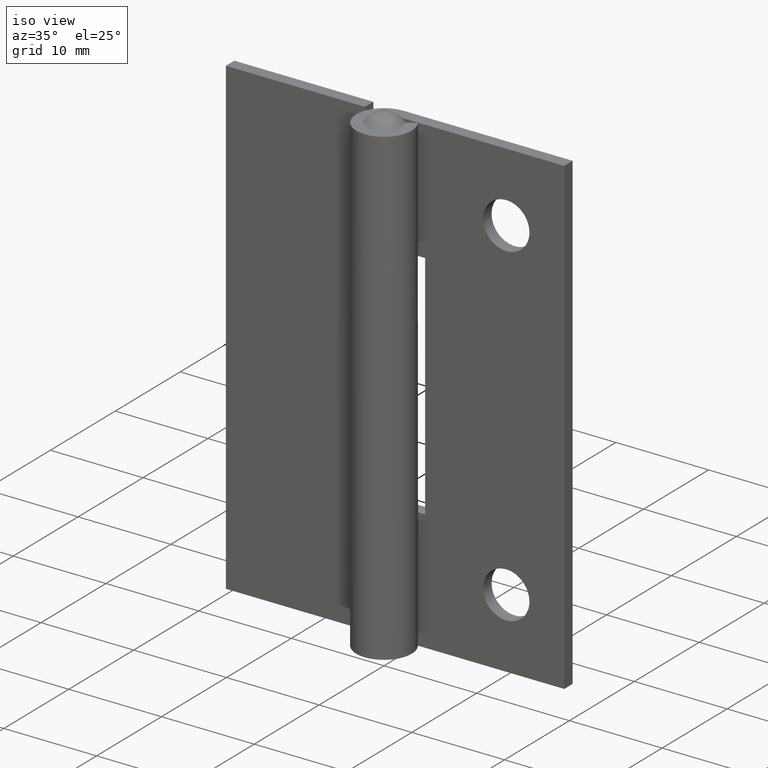
[diagram: clean part render]
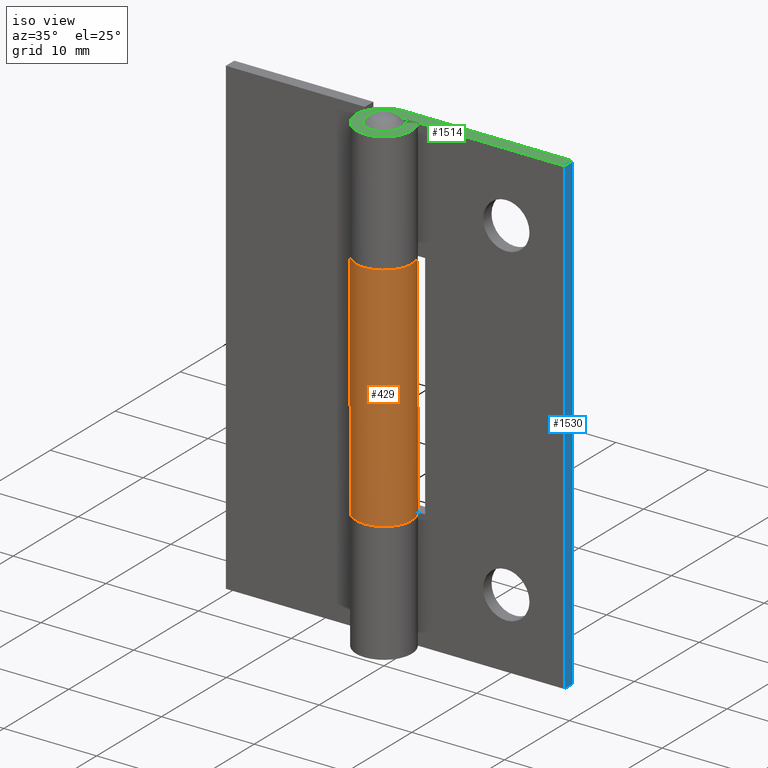
[diagram: same view with three faces highlighted in distinct colors, each labeled with its STEP entity id]
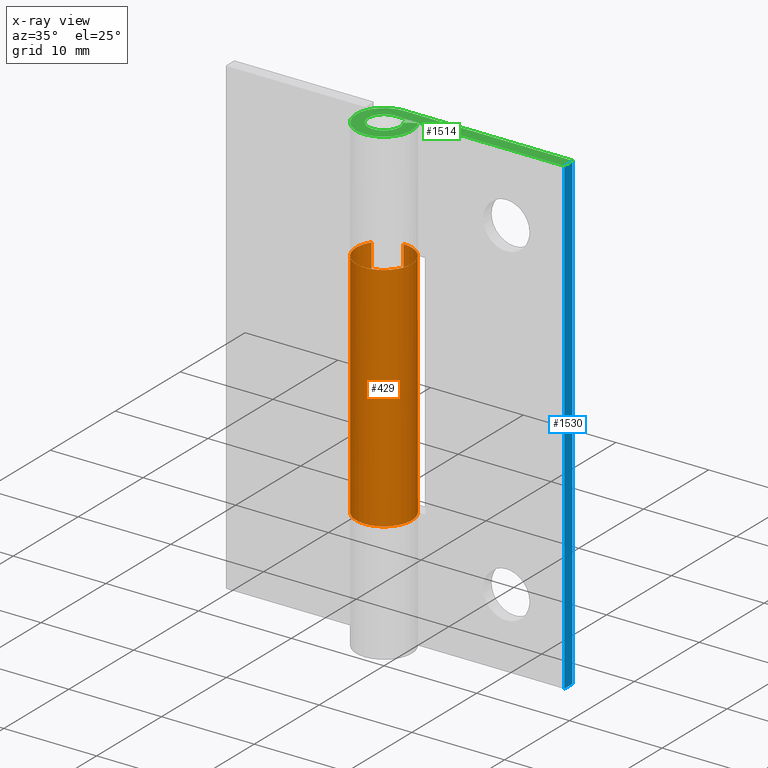
[diagram: x-ray of the same camera — body ghosted, the three highlighted faces saturated]
A machine part, iso view with three faces highlighted in distinct colors.
The next image is the same camera in x-ray (body ghosted, the three faces saturated) — at least one of them is partly hidden behind the body in this view.
Their STEP definitions:

[orange] entity #429 — the highlighted face is a freeform B-spline surface patch.
#10=CARTESIAN_POINT('',(0.0,3.000002000000000,13.0));
#11=VERTEX_POINT('',#10);
#54=CARTESIAN_POINT('',(0.0,3.000002000000000,37.999992000000049));
#55=VERTEX_POINT('',#54);
#61=CARTESIAN_POINT('',(0.0,3.000002000000000,37.999992000000049));
#62=CARTESIAN_POINT('',(0.0,3.000002000000000,13.0));
#63=QUASI_UNIFORM_CURVE('',1,(#61,#62),.UNSPECIFIED.,.F.,.U.);
#64=EDGE_CURVE('',#55,#11,#63,.T.);
#82=CARTESIAN_POINT('',(1.423026426195536,-2.641024004122863,13.0));
#83=VERTEX_POINT('',#82);
#84=CARTESIAN_POINT('',(1.423026426195536,-2.641024004122863,13.0));
#85=CARTESIAN_POINT('',(1.696241003748882,-2.493999839197553,13.000000000000020));
#86=CARTESIAN_POINT('',(2.054515973802889,-2.221699898313400,12.999999999999931));
#87=CARTESIAN_POINT('',(2.434677555923820,-1.769459809919619,13.000000000000050));
#88=CARTESIAN_POINT('',(2.693363652278597,-1.356463224982445,12.999999999999950));
#89=CARTESIAN_POINT('',(2.872407513277396,-0.912990057427671,13.000000000000041));
#90=CARTESIAN_POINT('',(2.991300741296551,-0.376854252513618,12.999999999999909));
#91=CARTESIAN_POINT('',(3.019074991646429,0.205004030988084,13.000000000000099));
#92=CARTESIAN_POINT('',(2.888675971770090,0.922281118502853,12.999999999999821));
#93=CARTESIAN_POINT('',(2.573252400313777,1.604187632160447,13.000000000000149));
#94=CARTESIAN_POINT('',(2.144066030474825,2.127707864975705,12.999999999999851));
#95=CARTESIAN_POINT('',(1.685063248863459,2.500774553818776,13.000000000000080));
#96=CARTESIAN_POINT('',(1.249172523742587,2.742722436521935,12.999999999999970));
#97=CARTESIAN_POINT('',(0.682478061986653,2.943999723250462,13.000000000000011));
#98=CARTESIAN_POINT('',(0.268883878784432,3.000091895017648,12.999999999999989));
#99=CARTESIAN_POINT('',(0.0,3.000002000000000,13.0));
#100=B_SPLINE_CURVE_WITH_KNOTS('',3,(#84,#85,#86,#87,#88,#89,#90,#91,#92,#93,#94,#95,#96,#97,#98,#99),.UNSPECIFIED.,.F.,.U.,(4,1,1,1,1,1,1,1,1,1,1,1,1,4),(0.000000144265609,0.930714000393920,1.334023337405996,1.768370657240563,2.388863582066503,2.761161634295871,3.412660143187285,4.126195433108664,4.932811566384553,5.646380692375820,6.142776790865187,6.701213533085385,7.135550101752789,7.942169907975120),.UNSPECIFIED.);
#101=EDGE_CURVE('',#83,#11,#100,.T.);
#103=CARTESIAN_POINT('',(-2.505495699458090,1.650001000000000,13.0));
#104=VERTEX_POINT('',#103);
#105=CARTESIAN_POINT('',(-2.505495699458090,1.650001000000000,13.0));
#106=CARTESIAN_POINT('',(-2.636353800408151,1.451383417659768,12.999999999999980));
#107=CARTESIAN_POINT('',(-2.808537221475131,1.106662157560074,13.000000000000041));
#108=CARTESIAN_POINT('',(-2.967381686086659,0.537399019557936,13.000000000000011));
#109=CARTESIAN_POINT('',(-3.016394507632969,0.030324298074741,12.999999999999931));
#110=CARTESIAN_POINT('',(-2.973382794595851,-0.476112232548683,13.000000000000171));
#111=CARTESIAN_POINT('',(-2.845695036130103,-1.010613010288413,12.999999999999661));
#112=CARTESIAN_POINT('',(-2.619267545849242,-1.502936878233849,13.000000000000410));
#113=CARTESIAN_POINT('',(-2.290450828599840,-1.956109718948861,12.999999999999719));
#114=CARTESIAN_POINT('',(-1.909968860638736,-2.338716665733205,13.000000000000121));
#115=CARTESIAN_POINT('',(-1.426187214994965,-2.663785632296504,13.000000000000030));
#116=CARTESIAN_POINT('',(-0.829305435958523,-2.905505589189485,12.999999999999879));
#117=CARTESIAN_POINT('',(-0.255649051529168,-3.008693424912726,13.000000000000050));
#118=CARTESIAN_POINT('',(0.346118824189656,-2.997533016453518,12.999999999999940));
#119=CARTESIAN_POINT('',(0.895819188891814,-2.883435480429643,13.000000000000050));
#120=CARTESIAN_POINT('',(1.259168291976045,-2.729331890790453,12.999999999999980));
#121=CARTESIAN_POINT('',(1.423026426195536,-2.641024004122863,13.0));
#122=B_SPLINE_CURVE_WITH_KNOTS('',3,(#105,#106,#107,#108,#109,#110,#111,#112,#113,#114,#115,#116,#117,#118,#119,#120,#121),.UNSPECIFIED.,.F.,.U.,(4,1,1,1,1,1,1,1,1,1,1,1,1,1,4),(0.000000144268528,0.713540141813481,1.147885989234410,1.768370898900415,2.233738761618954,2.668080367282656,3.412660609565409,3.847023008366085,4.343348167258297,5.025895140359309,5.584332961960519,6.266873864376220,6.763258202202440,7.383751418462983,7.942170993323504),.UNSPECIFIED.);
#123=EDGE_CURVE('',#104,#83,#122,.T.);
#248=CARTESIAN_POINT('',(-2.505495699458090,1.650001000000000,37.999992000000049));
#249=VERTEX_POINT('',#248);
#255=CARTESIAN_POINT('',(1.423025470731808,-2.641024518941942,37.999992000000042));
#256=VERTEX_POINT('',#255);
#257=CARTESIAN_POINT('',(1.423025470731808,-2.641024518941942,37.999992000000042));
#258=CARTESIAN_POINT('',(1.213659353721908,-2.753891330163818,37.999992000000027));
#259=CARTESIAN_POINT('',(0.855117370964844,-2.895053891927662,37.999991999999963));
#260=CARTESIAN_POINT('',(0.314857555621432,-2.995568228683164,37.999992000000177));
#261=CARTESIAN_POINT('',(-0.224522252304437,-3.011178803819482,37.999991999999807));
#262=CARTESIAN_POINT('',(-0.747903717078678,-2.922613854604747,37.999991999999807));
#263=CARTESIAN_POINT('',(-1.254451525264408,-2.738476170279309,37.999992000000823));
#264=CARTESIAN_POINT('',(-1.627221646336632,-2.533027781264944,37.999991999999608));
#265=CARTESIAN_POINT('',(-1.998701919278428,-2.251496052555410,37.999992000000148));
#266=CARTESIAN_POINT('',(-2.377444903791668,-1.866821810200601,37.999992000000283));
#267=CARTESIAN_POINT('',(-2.695717884032923,-1.365317685500108,37.999992000000177));
#268=CARTESIAN_POINT('',(-2.928867554783626,-0.743447851588273,37.999991999999587));
#269=CARTESIAN_POINT('',(-3.029823111526469,-0.084174181285080,37.999992000000077));
#270=CARTESIAN_POINT('',(-2.966633403595887,0.569335725162480,37.999992000000027));
#271=CARTESIAN_POINT('',(-2.786912057333352,1.154328610983712,37.999992000000042));
#272=CARTESIAN_POINT('',(-2.619273513573334,1.477289382752710,37.999992000000049));
#273=CARTESIAN_POINT('',(-2.505495699458090,1.650001000000000,37.999992000000049));
#274=B_SPLINE_CURVE_WITH_KNOTS('',3,(#257,#258,#259,#260,#261,#262,#263,#264,#265,#266,#267,#268,#269,#270,#271,#272,#273),.UNSPECIFIED.,.F.,.U.,(4,1,1,1,1,1,1,1,1,1,1,1,1,1,4),(0.000000144267989,0.713540044317472,1.147885832377158,1.644275308184150,2.326815798812142,2.730124571149556,3.257537373923235,3.598826527053475,4.126195433109304,4.870765774722469,5.367158199966370,6.111749235976080,6.856339712164311,7.321712264856264,7.942169907975118),.UNSPECIFIED.);
#275=EDGE_CURVE('',#256,#249,#274,.T.);
#277=CARTESIAN_POINT('',(0.0,3.000002000000000,37.999992000000049));
#278=CARTESIAN_POINT('',(0.237853404007871,3.000064694532663,37.999991999999963));
#279=CARTESIAN_POINT('',(0.589419381193620,2.957951708421806,37.999992000000191));
#280=CARTESIAN_POINT('',(1.094908251013483,2.804505801480021,37.999992000000141));
#281=CARTESIAN_POINT('',(1.555268961156716,2.588086777189597,37.999992000000120));
#282=CARTESIAN_POINT('',(1.990441315333389,2.266789306963455,37.999992000000027));
#283=CARTESIAN_POINT('',(2.338146017495739,1.896351055646265,37.999992000000042));
#284=CARTESIAN_POINT('',(2.622896308914709,1.488167639543203,37.999992000000049));
#285=CARTESIAN_POINT('',(2.828023883270219,1.044679391510370,37.999991999999978));
#286=CARTESIAN_POINT('',(2.970646160618597,0.514178150719598,37.999992000000020));
#287=CARTESIAN_POINT('',(3.021271923702222,-0.034505039179120,37.999992000000020));
#288=CARTESIAN_POINT('',(2.941519575711395,-0.726539621788880,37.999992000000212));
#289=CARTESIAN_POINT('',(2.703781919404844,-1.362281026683100,37.999992000000013));
#290=CARTESIAN_POINT('',(2.368258183336595,-1.862626169834174,37.999992000000063));
#291=CARTESIAN_POINT('',(1.972275541417235,-2.286996004029181,37.999992000000027));
#292=CARTESIAN_POINT('',(1.650665847580584,-2.518463914595679,37.999992000000027));
#293=CARTESIAN_POINT('',(1.423025470731808,-2.641024518941942,37.999992000000042));
#294=B_SPLINE_CURVE_WITH_KNOTS('',3,(#277,#278,#279,#280,#281,#282,#283,#284,#285,#286,#287,#288,#289,#290,#291,#292,#293),.UNSPECIFIED.,.F.,.U.,(4,1,1,1,1,1,1,1,1,1,1,1,1,1,4),(0.000000144267354,0.713540141812519,1.054801511953356,1.582230310151594,2.233738761618328,2.668080367282085,3.102412490108013,3.722894188117314,4.126195996971263,4.746686621185891,5.367158933418060,6.204826396354631,6.763258202202422,7.166590168866429,7.942170993323503),.UNSPECIFIED.);
#295=EDGE_CURVE('',#55,#256,#294,.T.);
#395=CARTESIAN_POINT('',(-2.491001505560273,1.671802470180149,38.624991800000053));
#396=CARTESIAN_POINT('',(-2.491001505560273,1.671802470180149,12.359375204999999));
#397=CARTESIAN_POINT('',(-4.567829051347469,-1.422690231931652,38.624991800000053));
#398=CARTESIAN_POINT('',(-4.567829051347469,-1.422690231931652,12.359375204999999));
#399=CARTESIAN_POINT('',(-1.101144868501883,-2.790607815257451,38.624991800000053));
#400=CARTESIAN_POINT('',(-1.101144868501883,-2.790607815257451,12.359375204999999));
#401=CARTESIAN_POINT('',(2.365539314343703,-4.158525398583251,38.624991800000053));
#402=CARTESIAN_POINT('',(2.365539314343703,-4.158525398583251,12.359375204999999));
#403=CARTESIAN_POINT('',(2.961407889556615,-0.479661663754601,38.624991800000053));
#404=CARTESIAN_POINT('',(2.961407889556615,-0.479661663754601,12.359375204999999));
#405=CARTESIAN_POINT('',(3.557276464769526,3.199202071074048,38.624991800000053));
#406=CARTESIAN_POINT('',(3.557276464769526,3.199202071074048,12.359375204999999));
#407=CARTESIAN_POINT('',(-0.163961310269891,2.995518100218821,38.624991800000053));
#408=CARTESIAN_POINT('',(-0.163961310269891,2.995518100218821,12.359375204999999));
#416=(BOUNDED_SURFACE()B_SPLINE_SURFACE(1,2,((#395,#397,#399,#401,#403,#405,#407),(#396,#398,#400,#402,#404,#406,#408)),.UNSPECIFIED.,.F.,.F.,.U.)B_SPLINE_SURFACE_WITH_KNOTS((2,2),(3,2,2,3),(0.0,26.265616595000051),(0.0,5.745149125795101,11.490298251590200,17.235447377385299),.UNSPECIFIED.)GEOMETRIC_REPRESENTATION_ITEM()RATIONAL_B_SPLINE_SURFACE(((1.0,0.627057105746662,1.0,0.627057105746662,1.0,0.627057105746662,1.0),(1.0,0.627057105746662,1.0,0.627057105746662,1.0,0.627057105746662,1.0)))REPRESENTATION_ITEM('')SURFACE());
#417=CARTESIAN_POINT('',(-2.505495699458090,1.650001000000000,37.999992000000049));
#418=CARTESIAN_POINT('',(-2.505495699458090,1.650001000000000,13.0));
#419=QUASI_UNIFORM_CURVE('',1,(#417,#418),.UNSPECIFIED.,.F.,.U.);
#420=EDGE_CURVE('',#249,#104,#419,.T.);
#421=ORIENTED_EDGE('',*,*,#420,.T.);
#422=ORIENTED_EDGE('',*,*,#123,.T.);
#423=ORIENTED_EDGE('',*,*,#101,.T.);
#424=ORIENTED_EDGE('',*,*,#64,.F.);
#425=ORIENTED_EDGE('',*,*,#295,.T.);
#426=ORIENTED_EDGE('',*,*,#275,.T.);
#427=EDGE_LOOP('',(#421,#422,#423,#424,#425,#426));
#428=FACE_OUTER_BOUND('',#427,.T.);
#429=ADVANCED_FACE('',(#428),#416,.T.);

[blue] entity #1530 — the highlighted face is a freeform B-spline surface patch.
#1173=CARTESIAN_POINT('',(18.250000000000000,3.000002000000000,50.999992000000098));
#1174=VERTEX_POINT('',#1173);
#1180=CARTESIAN_POINT('',(18.250000000000000,3.000002000000000,0.0));
#1181=VERTEX_POINT('',#1180);
#1182=CARTESIAN_POINT('',(18.250000000000000,3.000002000000000,50.999992000000098));
#1183=CARTESIAN_POINT('',(18.250000000000000,3.000002000000000,0.0));
#1184=QUASI_UNIFORM_CURVE('',1,(#1182,#1183),.UNSPECIFIED.,.F.,.U.);
#1185=EDGE_CURVE('',#1174,#1181,#1184,.T.);
#1431=CARTESIAN_POINT('',(18.250000000000000,1.700001000000000,0.0));
#1432=VERTEX_POINT('',#1431);
#1433=CARTESIAN_POINT('',(18.250000000000000,1.700001000000000,0.0));
#1434=CARTESIAN_POINT('',(18.250000000000000,3.000002000000000,0.0));
#1435=QUASI_UNIFORM_CURVE('',1,(#1433,#1434),.UNSPECIFIED.,.F.,.U.);
#1436=EDGE_CURVE('',#1432,#1181,#1435,.T.);
#1492=CARTESIAN_POINT('',(18.250000000000000,1.700001000000000,50.999992000000098));
#1493=VERTEX_POINT('',#1492);
#1499=CARTESIAN_POINT('',(18.250000000000000,1.700001000000000,50.999992000000098));
#1500=CARTESIAN_POINT('',(18.250000000000000,3.000002000000000,50.999992000000098));
#1501=QUASI_UNIFORM_CURVE('',1,(#1499,#1500),.UNSPECIFIED.,.F.,.U.);
#1502=EDGE_CURVE('',#1493,#1174,#1501,.T.);
#1515=CARTESIAN_POINT('',(18.250000000000000,1.635065952569654,-2.547449501552125));
#1516=CARTESIAN_POINT('',(18.250000000000000,1.635065952569654,53.547442869478623));
#1517=CARTESIAN_POINT('',(18.250000000000000,3.064937082299090,-2.547449501552125));
#1518=CARTESIAN_POINT('',(18.250000000000000,3.064937082299090,53.547442869478623));
#1519=B_SPLINE_SURFACE_WITH_KNOTS('',1,1,((#1515,#1517),(#1516,#1518)),.UNSPECIFIED.,.F.,.F.,.U.,(2,2),(2,2),(0.0,56.094892371030738),(0.041708334948495,0.958291687403247),.UNSPECIFIED.);
#1520=ORIENTED_EDGE('',*,*,#1436,.T.);
#1521=ORIENTED_EDGE('',*,*,#1185,.F.);
#1522=ORIENTED_EDGE('',*,*,#1502,.F.);
#1523=CARTESIAN_POINT('',(18.250000000000000,1.700001000000000,50.999992000000098));
#1524=CARTESIAN_POINT('',(18.250000000000000,1.700001000000000,0.0));
#1525=QUASI_UNIFORM_CURVE('',1,(#1523,#1524),.UNSPECIFIED.,.F.,.U.);
#1526=EDGE_CURVE('',#1493,#1432,#1525,.T.);
#1527=ORIENTED_EDGE('',*,*,#1526,.T.);
#1528=EDGE_LOOP('',(#1520,#1521,#1522,#1527));
#1529=FACE_OUTER_BOUND('',#1528,.T.);
#1530=ADVANCED_FACE('',(#1529),#1519,.F.);

[green] entity #1514 — the highlighted face is a freeform B-spline surface patch.
#1060=CARTESIAN_POINT('',(0.0,3.000002000000000,50.999992000000098));
#1061=VERTEX_POINT('',#1060);
#1111=CARTESIAN_POINT('',(2.505495699458095,1.650001000000000,50.999992000000098));
#1112=VERTEX_POINT('',#1111);
#1118=CARTESIAN_POINT('',(-1.423026426195538,-2.641024004122861,50.999992000000098));
#1119=VERTEX_POINT('',#1118);
#1120=CARTESIAN_POINT('',(2.505495699458095,1.650001000000000,50.999992000000098));
#1121=CARTESIAN_POINT('',(2.659152867423390,1.416859203879268,50.999992000000113));
#1122=CARTESIAN_POINT('',(2.842409988971141,1.029959300309058,50.999992000000127));
#1123=CARTESIAN_POINT('',(2.991827349001631,0.394045905489076,50.999992000000027));
#1124=CARTESIAN_POINT('',(3.015977988269710,-0.146651768273965,50.999992000000681));
#1125=CARTESIAN_POINT('',(2.937437153805525,-0.659525993147156,50.999991999999793));
#1126=CARTESIAN_POINT('',(2.795099217241126,-1.125245056279261,50.999991999999970));
#1127=CARTESIAN_POINT('',(2.588785417976174,-1.544883441037424,50.999992000000731));
#1128=CARTESIAN_POINT('',(2.290458453552381,-1.956113088225820,50.999991999999359));
#1129=CARTESIAN_POINT('',(1.909965303193698,-2.338706159935538,50.999992000000368));
#1130=CARTESIAN_POINT('',(1.348458181959766,-2.716104825608401,50.999991999999871));
#1131=CARTESIAN_POINT('',(0.668748293163670,-2.955181493696877,50.999992000000390));
#1132=CARTESIAN_POINT('',(-0.045409854435676,-3.023366641162279,50.999992000000127));
#1133=CARTESIAN_POINT('',(-0.737593954270076,-2.938521897642977,50.999992000000013));
#1134=CARTESIAN_POINT('',(-1.195465102598596,-2.763726289994385,50.999992000000162));
#1135=CARTESIAN_POINT('',(-1.423026426195538,-2.641024004122861,50.999992000000098));
#1136=B_SPLINE_CURVE_WITH_KNOTS('',3,(#1120,#1121,#1122,#1123,#1124,#1125,#1126,#1127,#1128,#1129,#1130,#1131,#1132,#1133,#1134,#1135),.UNSPECIFIED.,.F.,.U.,(4,1,1,1,1,1,1,1,1,1,1,1,1,4),(0.000000144268168,0.837627442590821,1.271975226150510,1.954519380402248,2.450909799725148,2.823207461734858,3.412660609565127,3.847023008365821,4.343348167258050,5.025895140359158,5.863554995786882,6.484044889008764,7.166590168866425,7.942170993323497),.UNSPECIFIED.);
#1137=EDGE_CURVE('',#1112,#1119,#1136,.T.);
#1139=CARTESIAN_POINT('',(-1.423026426195538,-2.641024004122861,50.999992000000098));
#1140=CARTESIAN_POINT('',(-1.668875942504498,-2.508661645314430,50.999992000000141));
#1141=CARTESIAN_POINT('',(-2.114747456830216,-2.180787028216572,50.999991999999821));
#1142=CARTESIAN_POINT('',(-2.577145240081086,-1.588613147772331,50.999992000000262));
#1143=CARTESIAN_POINT('',(-2.867495258291966,-0.955792319444125,50.999991999999963));
#1144=CARTESIAN_POINT('',(-3.009516602501264,-0.315613841695883,50.999992000000461));
#1145=CARTESIAN_POINT('',(-3.003868907910240,0.288034164459387,50.999991999999637));
#1146=CARTESIAN_POINT('',(-2.885120578597633,0.888138139748742,50.999992000000070));
#1147=CARTESIAN_POINT('',(-2.661247806697586,1.437920595448713,50.999992000000383));
#1148=CARTESIAN_POINT('',(-2.256779567120800,2.017800141433506,50.999991999999857));
#1149=CARTESIAN_POINT('',(-1.782399960473849,2.441574923780686,50.999992000000177));
#1150=CARTESIAN_POINT('',(-1.304256409576121,2.713366286692949,50.999992000000098));
#1151=CARTESIAN_POINT('',(-0.744482684874704,2.932003741107711,50.999992000000113));
#1152=CARTESIAN_POINT('',(-0.310262129782240,3.000182831917522,50.999992000000098));
#1153=CARTESIAN_POINT('',(0.0,3.000002000000000,50.999992000000098));
#1154=B_SPLINE_CURVE_WITH_KNOTS('',3,(#1139,#1140,#1141,#1142,#1143,#1144,#1145,#1146,#1147,#1148,#1149,#1150,#1151,#1152,#1153),.UNSPECIFIED.,.F.,.U.,(4,1,1,1,1,1,1,1,1,1,1,1,4),(0.000000144266162,0.837627328130787,1.644275308182976,2.233738456361262,2.916285883290795,3.598826527052835,4.033108445641542,4.746685972507246,5.367158199966179,6.142776790865232,6.639169852867497,7.011464998687607,7.942169907975120),.UNSPECIFIED.);
#1155=EDGE_CURVE('',#1119,#1061,#1154,.T.);
#1173=CARTESIAN_POINT('',(18.250000000000000,3.000002000000000,50.999992000000098));
#1174=VERTEX_POINT('',#1173);
#1175=CARTESIAN_POINT('',(18.250000000000000,3.000002000000000,50.999992000000098));
#1176=CARTESIAN_POINT('',(0.0,3.000002000000000,50.999992000000098));
#1177=QUASI_UNIFORM_CURVE('',1,(#1175,#1176),.UNSPECIFIED.,.F.,.U.);
#1178=EDGE_CURVE('',#1174,#1061,#1177,.T.);
#1446=CARTESIAN_POINT('',(-4.060931333824389,-3.297765099860622,50.999991999999999));
#1447=CARTESIAN_POINT('',(19.311413950535851,-3.297765099860622,50.999991999999999));
#1448=CARTESIAN_POINT('',(-4.060931333824389,3.299610194610413,50.999991999999999));
#1449=CARTESIAN_POINT('',(19.311413950535851,3.299610194610413,50.999991999999999));
#1450=B_SPLINE_SURFACE_WITH_KNOTS('',1,1,((#1446,#1448),(#1447,#1449)),.UNSPECIFIED.,.F.,.F.,.U.,(2,2),(2,2),(0.0,23.372345284360240),(0.0,6.597375294471035),.UNSPECIFIED.);
#1451=CARTESIAN_POINT('',(1.419780785004296,0.935000493333338,50.999992000000098));
#1452=VERTEX_POINT('',#1451);
#1453=CARTESIAN_POINT('',(-0.806381954266794,-1.496579949028406,50.999992000000098));
#1454=VERTEX_POINT('',#1453);
#1455=CARTESIAN_POINT('',(1.419780785004296,0.935000493333338,50.999992000000098));
#1456=CARTESIAN_POINT('',(1.542471156191787,0.749129814298323,50.999992000000091));
#1457=CARTESIAN_POINT('',(1.685988524800286,0.394791751875445,50.999992000000027));
#1458=CARTESIAN_POINT('',(1.712556070487934,-0.089367270435901,50.999992000000162));
#1459=CARTESIAN_POINT('',(1.643826529600408,-0.483654514236345,50.999992000000070));
#1460=CARTESIAN_POINT('',(1.482354823869652,-0.876989425009798,50.999991999999772));
#1461=CARTESIAN_POINT('',(1.217545158619493,-1.211962840222959,50.999992000001157));
#1462=CARTESIAN_POINT('',(0.918462454446388,-1.440951150422763,50.999991999998322));
#1463=CARTESIAN_POINT('',(0.605186808055373,-1.603258320082424,50.999992000002351));
#1464=CARTESIAN_POINT('',(0.262384236905818,-1.694715591273185,50.999991999999907));
#1465=CARTESIAN_POINT('',(-0.090573529411686,-1.706382842641472,50.999991999999168));
#1466=CARTESIAN_POINT('',(-0.439803327003387,-1.656245223857528,50.999992000002010));
#1467=CARTESIAN_POINT('',(-0.672276923430065,-1.568901405138509,50.999991999998208));
#1468=CARTESIAN_POINT('',(-0.806381954266794,-1.496579949028406,50.999992000000098));
#1469=B_SPLINE_CURVE_WITH_KNOTS('',3,(#1455,#1456,#1457,#1458,#1459,#1460,#1461,#1462,#1463,#1464,#1465,#1466,#1467,#1468),.UNSPECIFIED.,.F.,.U.,(4,1,1,1,1,1,1,1,1,1,1,4),(0.000000090638229,0.668045999843400,1.125156922536266,1.441615669253582,1.863556150022964,2.390929869208476,2.707389274488449,2.988682538465194,3.445792334628201,3.762253173154865,4.043546437119710,4.500623787694876),.UNSPECIFIED.);
#1470=EDGE_CURVE('',#1452,#1454,#1469,.T.);
#1471=ORIENTED_EDGE('',*,*,#1470,.T.);
#1472=CARTESIAN_POINT('',(0.0,1.700001000000000,50.999992000000098));
#1473=VERTEX_POINT('',#1472);
#1474=CARTESIAN_POINT('',(-0.806381954266794,-1.496579949028406,50.999992000000098));
#1475=CARTESIAN_POINT('',(-0.981876853865669,-1.402205015659302,50.999992000000162));
#1476=CARTESIAN_POINT('',(-1.242897945203509,-1.195051201274408,50.999991999999992));
#1477=CARTESIAN_POINT('',(-1.493349914540048,-0.837592305536809,50.999992000000212));
#1478=CARTESIAN_POINT('',(-1.623022034522134,-0.534570770021934,50.999991999999892));
#1479=CARTESIAN_POINT('',(-1.692309908435566,-0.236749956275637,50.999992000000162));
#1480=CARTESIAN_POINT('',(-1.710342094207330,0.104132085413648,50.999992000000290));
#1481=CARTESIAN_POINT('',(-1.654306256467345,0.442010010106094,50.999991999999949));
#1482=CARTESIAN_POINT('',(-1.530562194751000,0.759817447394161,50.999991999999942));
#1483=CARTESIAN_POINT('',(-1.359145283191423,1.041322026224516,50.999992000000212));
#1484=CARTESIAN_POINT('',(-1.076607894829677,1.342410028241387,50.999992000000063));
#1485=CARTESIAN_POINT('',(-0.722263537257462,1.558714844447464,50.999992000000063));
#1486=CARTESIAN_POINT('',(-0.339868173351422,1.676873121011328,50.999992000000169));
#1487=CARTESIAN_POINT('',(-0.117199005867696,1.700017370578815,50.999992000000070));
#1488=CARTESIAN_POINT('',(0.0,1.700001000000000,50.999992000000098));
#1489=B_SPLINE_CURVE_WITH_KNOTS('',3,(#1474,#1475,#1476,#1477,#1478,#1479,#1480,#1481,#1482,#1483,#1484,#1485,#1486,#1487,#1488),.UNSPECIFIED.,.F.,.U.,(4,1,1,1,1,1,1,1,1,1,1,1,4),(0.000000090638155,0.597722001250812,0.984510938734295,1.300966303207461,1.582264174345605,1.898722353620961,2.320617968024943,2.601909599091381,2.918370092653271,3.305142297972401,3.832563414971635,4.149023908587770,4.500622318375535),.UNSPECIFIED.);
#1490=EDGE_CURVE('',#1454,#1473,#1489,.T.);
#1491=ORIENTED_EDGE('',*,*,#1490,.T.);
#1492=CARTESIAN_POINT('',(18.250000000000000,1.700001000000000,50.999992000000098));
#1493=VERTEX_POINT('',#1492);
#1494=CARTESIAN_POINT('',(0.0,1.700001000000000,50.999992000000098));
#1495=CARTESIAN_POINT('',(18.250000000000000,1.700001000000000,50.999992000000098));
#1496=QUASI_UNIFORM_CURVE('',1,(#1494,#1495),.UNSPECIFIED.,.F.,.U.);
#1497=EDGE_CURVE('',#1473,#1493,#1496,.T.);
#1498=ORIENTED_EDGE('',*,*,#1497,.T.);
#1499=CARTESIAN_POINT('',(18.250000000000000,1.700001000000000,50.999992000000098));
#1500=CARTESIAN_POINT('',(18.250000000000000,3.000002000000000,50.999992000000098));
#1501=QUASI_UNIFORM_CURVE('',1,(#1499,#1500),.UNSPECIFIED.,.F.,.U.);
#1502=EDGE_CURVE('',#1493,#1174,#1501,.T.);
#1503=ORIENTED_EDGE('',*,*,#1502,.T.);
#1504=ORIENTED_EDGE('',*,*,#1178,.T.);
#1505=ORIENTED_EDGE('',*,*,#1155,.F.);
#1506=ORIENTED_EDGE('',*,*,#1137,.F.);
#1507=CARTESIAN_POINT('',(2.505495699458095,1.650001000000000,50.999992000000098));
#1508=CARTESIAN_POINT('',(1.419780785004296,0.935000493333338,50.999992000000098));
#1509=QUASI_UNIFORM_CURVE('',1,(#1507,#1508),.UNSPECIFIED.,.F.,.U.);
#1510=EDGE_CURVE('',#1112,#1452,#1509,.T.);
#1511=ORIENTED_EDGE('',*,*,#1510,.T.);
#1512=EDGE_LOOP('',(#1471,#1491,#1498,#1503,#1504,#1505,#1506,#1511));
#1513=FACE_OUTER_BOUND('',#1512,.T.);
#1514=ADVANCED_FACE('',(#1513),#1450,.T.);